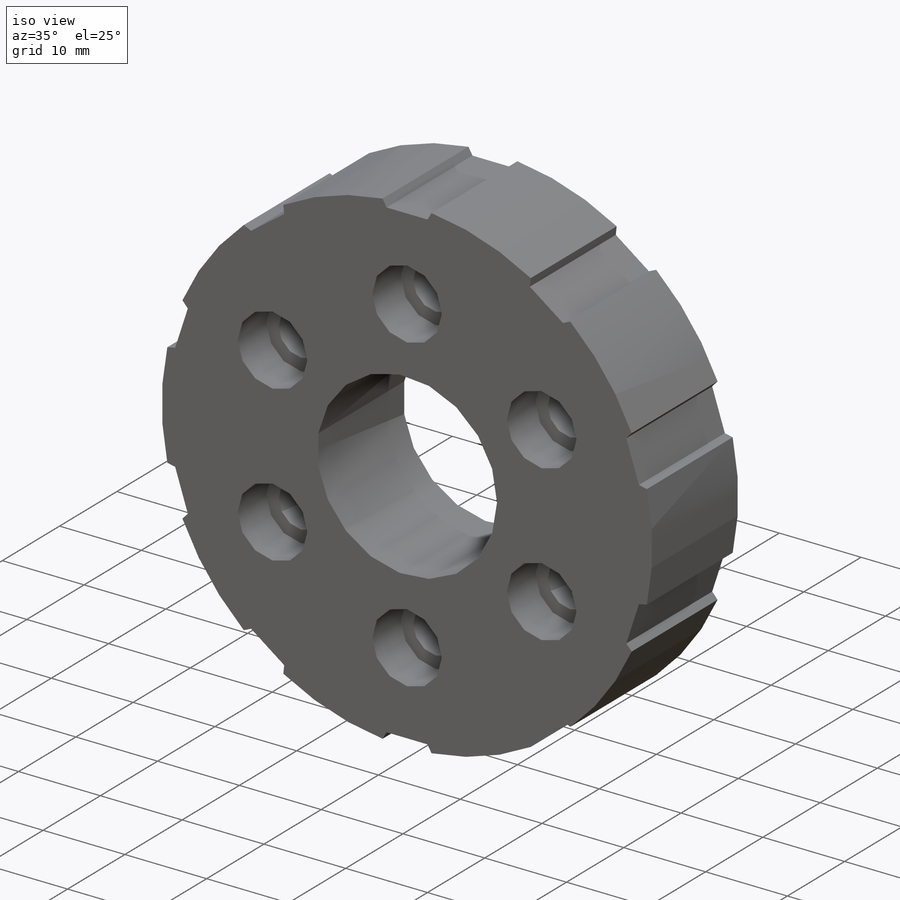
[diagram: iso view]
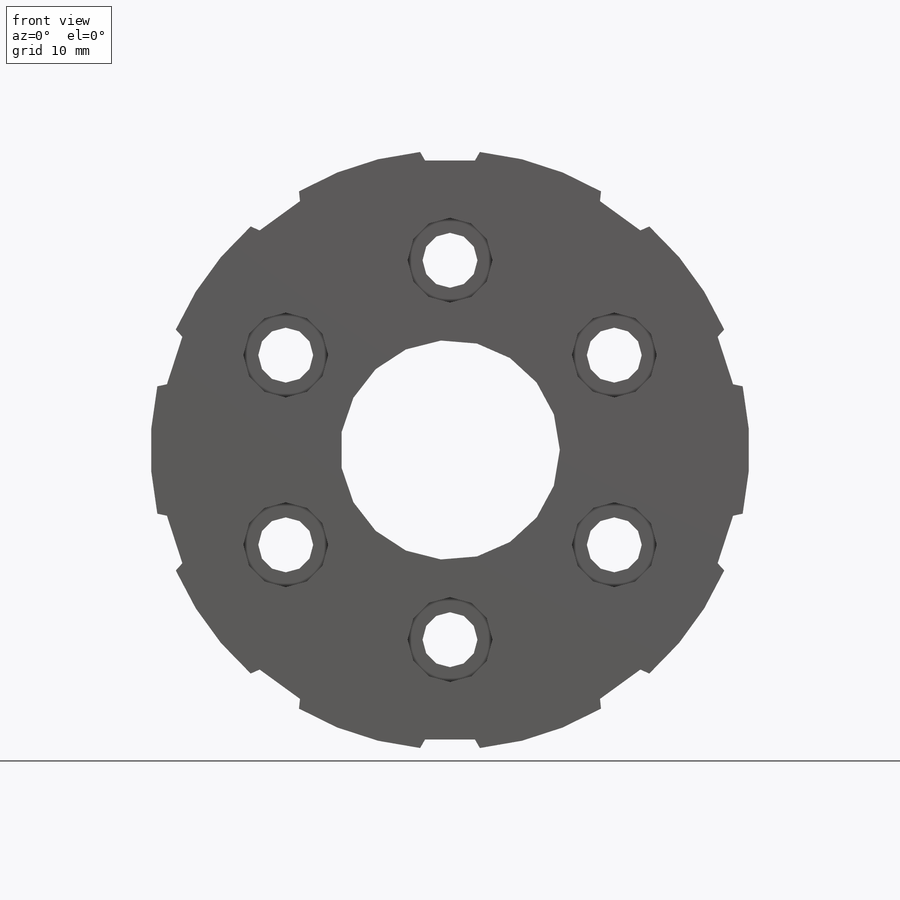
[diagram: front view]
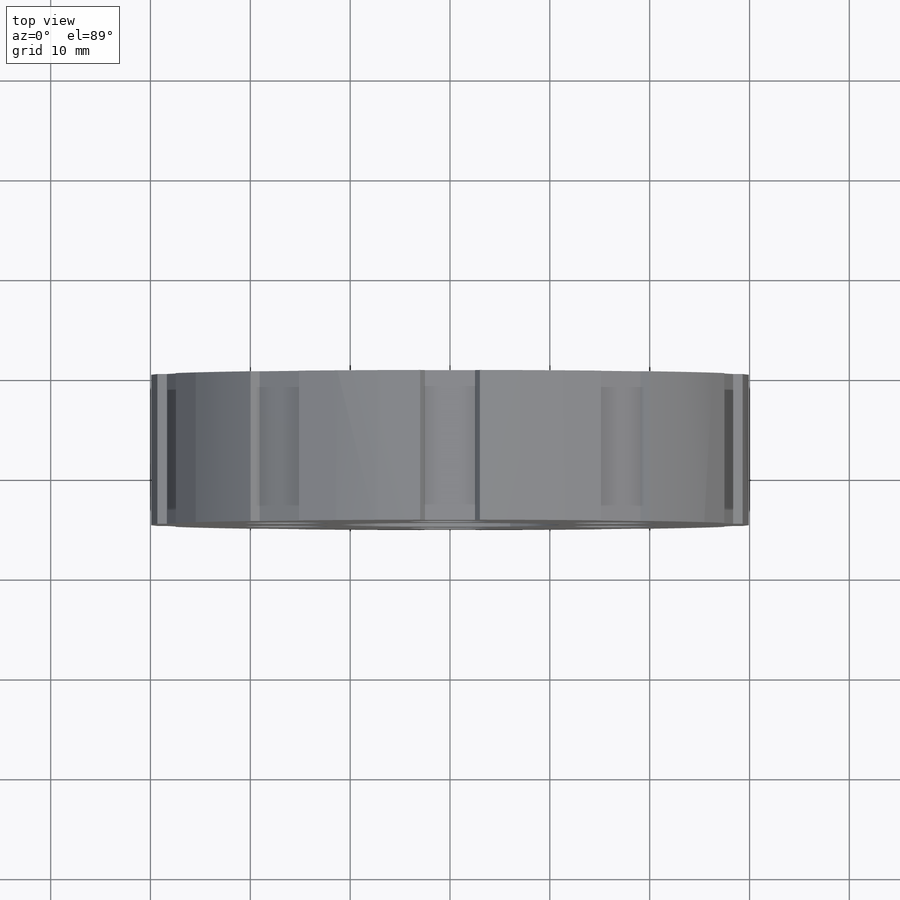
[diagram: top view]
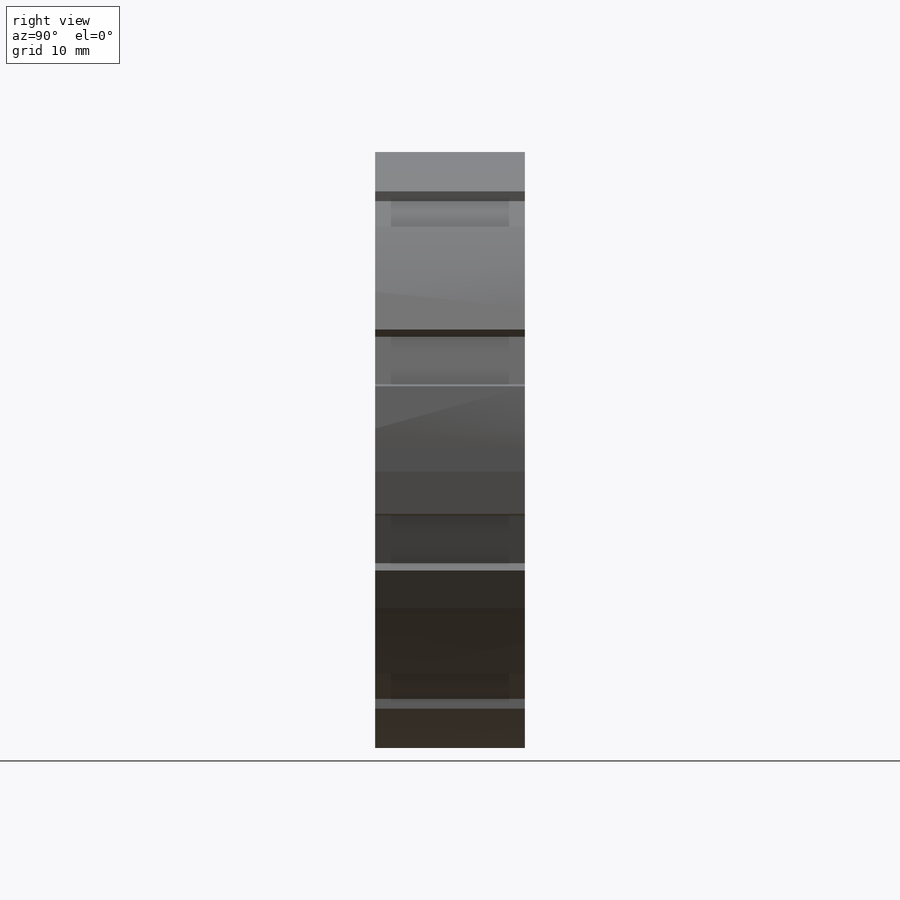
[diagram: right view]
SOLIDWORKS PART (.sldprt)
format: sldprt  version: not decoded by parser v0  size: 299,520 bytes
history: native  units: mm
features: sketch x5, thread x2, material x1, extrude x1, hole x1, pattern_circular x1 (+14 scaffold rows collapsed)
feature tree (25):
  scaffold x14  (default folders/planes/origin — collapsed)
  material  "201 Annealed Stainless Steel (SS)"
  sketch  "Sketch1"  dims[c1.D1=60.0mm c1.D6=30.0mm c1.D2=2.5mm c1.D3=~0.708523mm c2.D3=120.0deg c2.D4=1.0mm c2.D6=1.0mm c2.D7=~12.759324mm c2.D5=10.0]
  extrude  "Boss-Extrude1"  Depth=15mm
  hole  "M24x2.0 Tapped Hole1"  Diameter=22mm Depth=58mm
  sketch  "Sketch3"
  sketch  "Sketch2"  dims[hole-wizard template sketch: 46 standard entries collapsed; hole parameters kept: c15.Tap Drill Dia.=22.0mm c15.Tap Drill Depth=58.0mm c15.D3=~14.816244mm c15.Drill Angle=118.0deg]
  thread  "Hole Thread1"  Diameter=15mm  [1 undecoded]
  thread  "CBORE for M5 Hex Socket Head Cap Screw1"  [2 undecoded]
  sketch  "Sketch5"  dims[D1=19.0mm]
  sketch  "Sketch4"  dims[hole-wizard template sketch: 42 standard entries collapsed; hole parameters kept: c12.Thru Hole Depth=15.0mm c12.C'Bore Dia.=8.5mm c12.C'Bore Depth=5.0mm]
  pattern_circular  "CirPattern3"  Count=6 Angle=60deg
decode coverage: 8 of 10 modeling features carry decoded parameters
note: ~ marks probable driven/reference dimensions
note: 3 parameter values undecoded
note: suppression state not decoded; provenance and decode notes live in map.json
